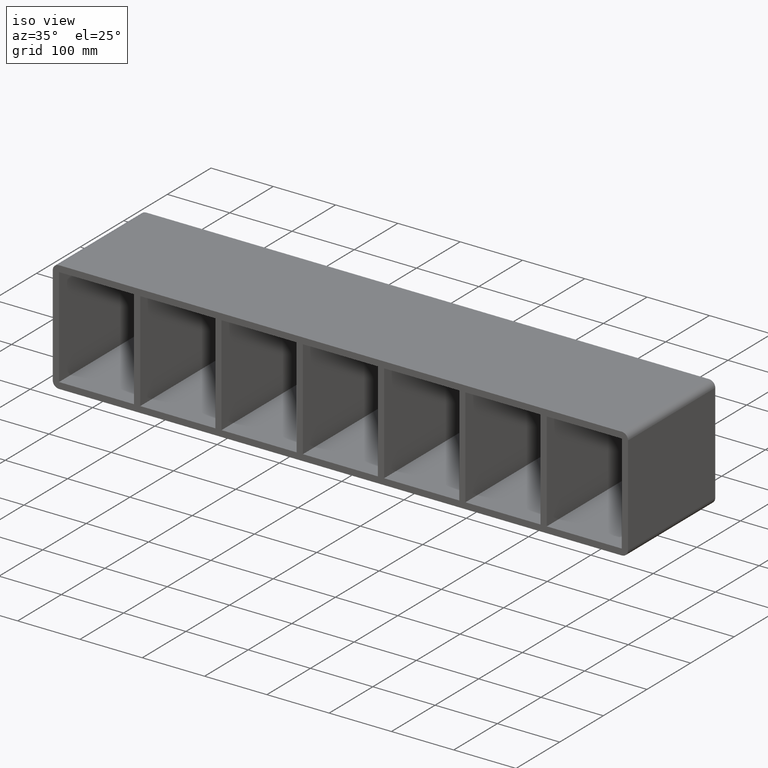
[diagram: clean part render]
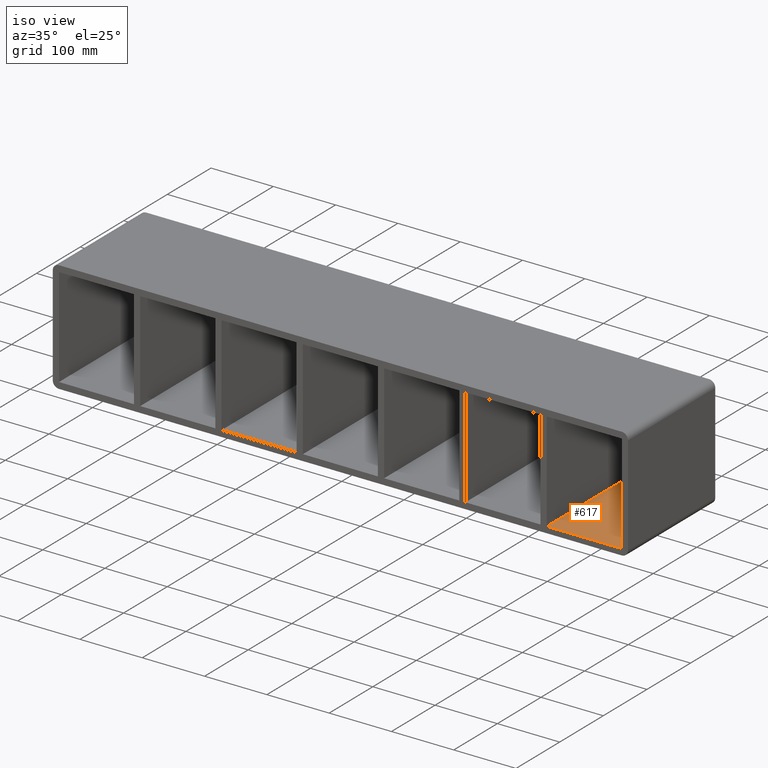
[diagram: same view with one face highlighted and labeled with its STEP entity id]
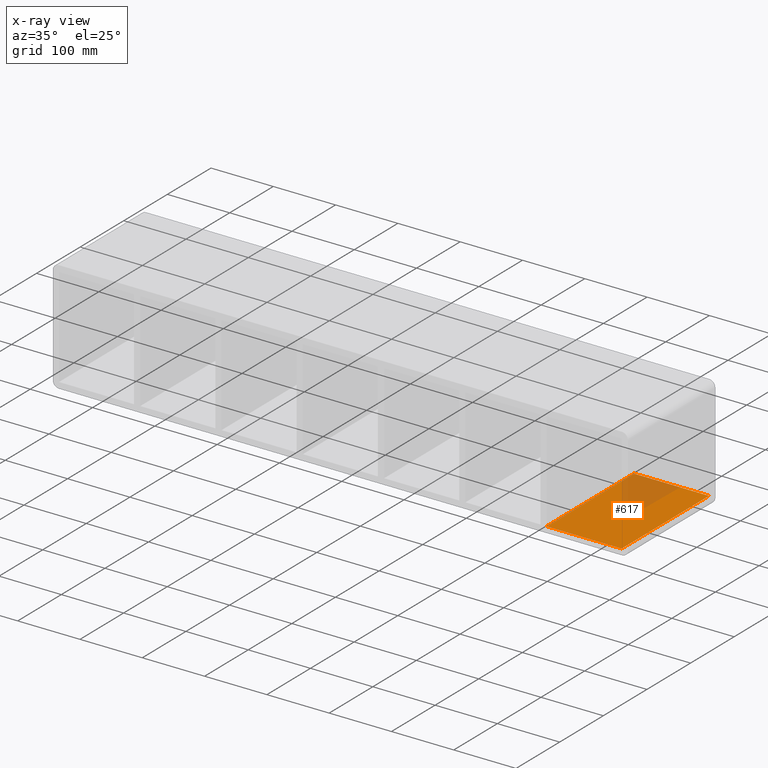
[diagram: x-ray of the same camera — body ghosted, the highlighted face saturated]
A machine part, iso view. The second image highlights one B-rep face of the part: STEP entity #617.
The next image is the same camera in x-ray: the body ghosted, the highlighted face saturated — about 24% of this face is hidden behind the body in this view.
In plain terms, the highlighted planar face has unit normal (0, 0, -1).
Its self-contained STEP definition (entity closure, byte-faithful):
#115=CARTESIAN_POINT('',(331.25,-3.0,-79.749999999971322));
#116=VERTEX_POINT('',#115);
#123=CARTESIAN_POINT('',(331.25,197.0,-79.749999999971322));
#124=VERTEX_POINT('',#123);
#125=CARTESIAN_POINT('',(331.25,196.99999999999997,-79.750000000000014));
#126=DIRECTION('',(0.0,-1.0,0.0));
#127=VECTOR('',#126,199.99999999999997);
#128=LINE('',#125,#127);
#129=EDGE_CURVE('',#124,#116,#128,.T.);
#587=CARTESIAN_POINT('',(451.75000000000006,0.0,-79.750000000000014));
#588=DIRECTION('',(0.0,0.0,-1.0));
#589=DIRECTION('',(-1.0,0.0,0.0));
#590=AXIS2_PLACEMENT_3D('',#587,#588,#589);
#591=PLANE('',#590);
#592=ORIENTED_EDGE('',*,*,#129,.T.);
#593=CARTESIAN_POINT('',(451.75000000000006,-3.0,-79.750000000000014));
#594=VERTEX_POINT('',#593);
#595=CARTESIAN_POINT('',(451.75000000000006,-3.0,-79.750000000000014));
#596=DIRECTION('',(-1.0,0.0,0.0));
#597=VECTOR('',#596,120.50000000000006);
#598=LINE('',#595,#597);
#599=EDGE_CURVE('',#594,#116,#598,.T.);
#600=ORIENTED_EDGE('',*,*,#599,.F.);
#601=CARTESIAN_POINT('',(451.75000000000006,197.0,-79.750000000000014));
#602=VERTEX_POINT('',#601);
#603=CARTESIAN_POINT('',(451.75000000000006,197.0,-79.750000000000014));
#604=DIRECTION('',(0.0,-1.0,0.0));
#605=VECTOR('',#604,200.0);
#606=LINE('',#603,#605);
#607=EDGE_CURVE('',#602,#594,#606,.T.);
#608=ORIENTED_EDGE('',*,*,#607,.F.);
#609=CARTESIAN_POINT('',(331.25,197.0,-79.750000000000014));
#610=DIRECTION('',(1.0,0.0,0.0));
#611=VECTOR('',#610,120.50000000000006);
#612=LINE('',#609,#611);
#613=EDGE_CURVE('',#124,#602,#612,.T.);
#614=ORIENTED_EDGE('',*,*,#613,.F.);
#615=EDGE_LOOP('',(#592,#600,#608,#614));
#616=FACE_OUTER_BOUND('',#615,.T.);
#617=ADVANCED_FACE('',(#616),#591,.F.);